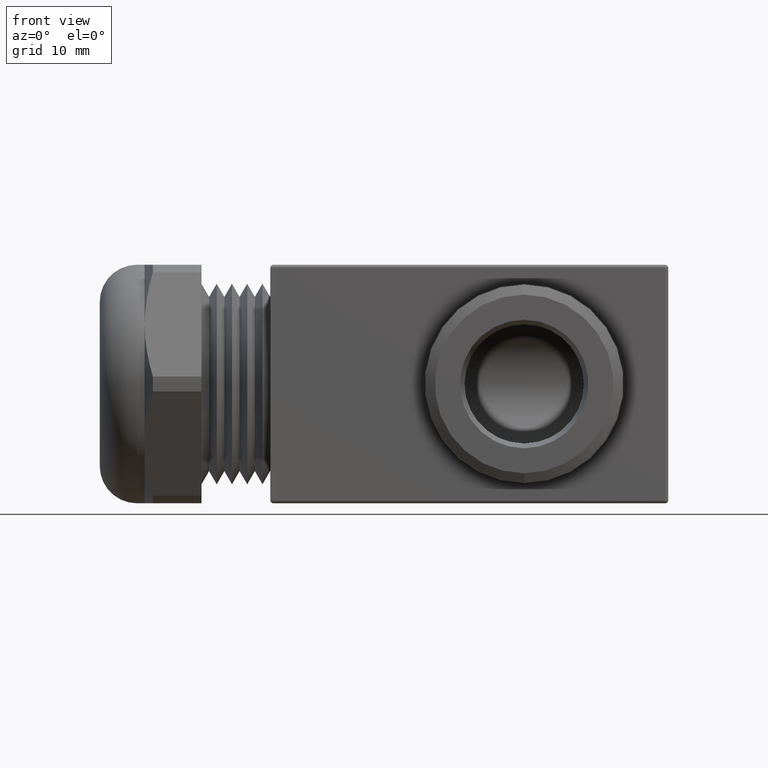
[diagram: clean part render]
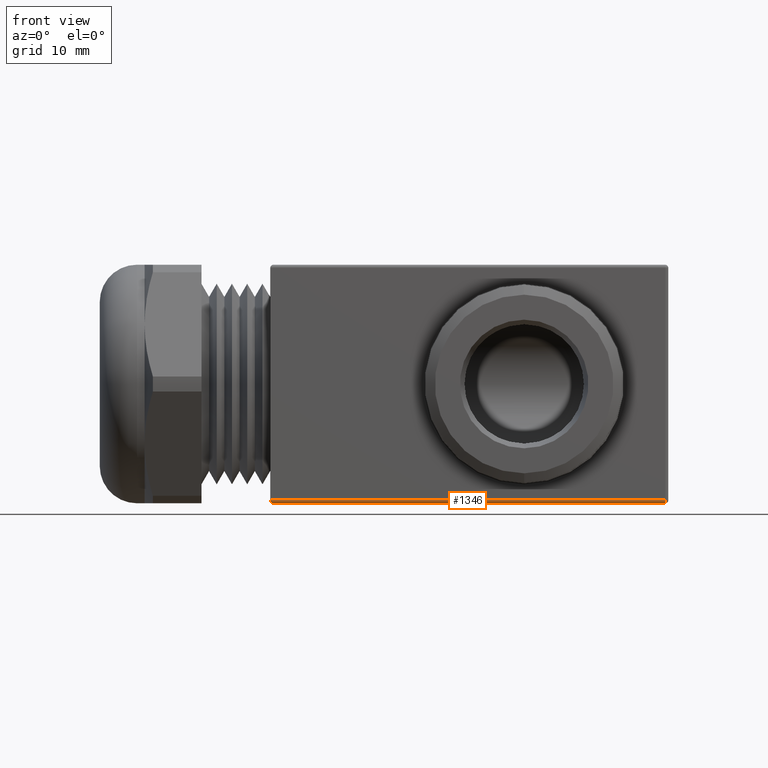
[diagram: same view with one face highlighted and labeled with its STEP entity id]
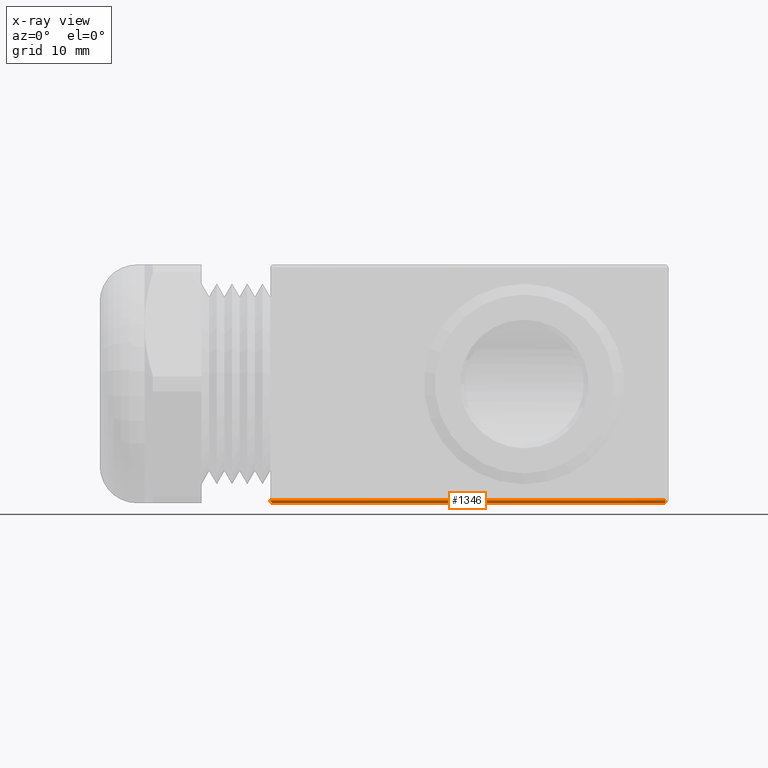
[diagram: x-ray of the same camera — body ghosted, the highlighted face saturated]
A machine part, front view. The second image highlights one B-rep face of the part: STEP entity #1346.
The next image is the same camera in x-ray: the body ghosted, the highlighted face saturated — about 0% of this face is hidden behind the body in this view.
In plain terms, the highlighted cylindrical surface (edge-blend (fillet) strip) has radius 0.3214 mm, axis along (1, 0, 0).
Its self-contained STEP definition (entity closure, byte-faithful):
#1266 = EDGE_CURVE ( 'NONE', #1367, #1267, #3890, .T. ) ;
#1267 = VERTEX_POINT ( 'NONE', #3885 ) ;
#1346 = ADVANCED_FACE ( 'NONE', ( #4129 ), #4128, .T. ) ;
#1347 = EDGE_LOOP ( 'NONE', ( #1348, #1351, #1353, #1354 ) ) ;
#1348 = ORIENTED_EDGE ( 'NONE', *, *, #1349, .T. ) ;
#1349 = EDGE_CURVE ( 'NONE', #1383, #1350, #4123, .T. ) ;
#1350 = VERTEX_POINT ( 'NONE', #4122 ) ;
#1351 = ORIENTED_EDGE ( 'NONE', *, *, #1352, .F. ) ;
#1352 = EDGE_CURVE ( 'NONE', #1267, #1350, #4121, .T. ) ;
#1353 = ORIENTED_EDGE ( 'NONE', *, *, #1266, .F. ) ;
#1354 = ORIENTED_EDGE ( 'NONE', *, *, #1386, .F. ) ;
#1367 = VERTEX_POINT ( 'NONE', #4111 ) ;
#1383 = VERTEX_POINT ( 'NONE', #4084 ) ;
#1386 = EDGE_CURVE ( 'NONE', #1383, #1367, #4082, .T. ) ;
#3885 = CARTESIAN_POINT ( 'NONE',  ( 1.555344632768362700, -0.5873446327683616900, -0.4700000000000000300 ) ) ;
#3886 = DIRECTION ( 'NONE',  ( 0.0000000000000000000, 0.0000000000000000000, -1.000000000000000000 ) ) ;
#3887 = DIRECTION ( 'NONE',  ( 1.000000000000000000, 0.0000000000000000000, 0.0000000000000000000 ) ) ;
#3888 = CARTESIAN_POINT ( 'NONE',  ( 1.555344632768362700, -0.5873446327683616900, -0.4573446327683616300 ) ) ;
#3889 = AXIS2_PLACEMENT_3D ( 'NONE', #3888, #3887, #3886 ) ;
#3890 = CIRCLE ( 'NONE', #3889, 0.01265536723163842100 ) ;
#3999 = DIRECTION ( 'NONE',  ( -1.000000000000000000, -1.306687496969512800E-016, 0.0000000000000000000 ) ) ;
#4000 = VECTOR ( 'NONE', #3999, 39.37007874015748100 ) ;
#4001 = CARTESIAN_POINT ( 'NONE',  ( 0.0000000000000000000, -0.5873446327683619100, -0.4700000000000000300 ) ) ;
#4002 = CARTESIAN_POINT ( 'NONE',  ( 0.01265536723163842100, -0.5873446327683619100, -0.4700000000000000300 ) ) ;
#4003 = CARTESIAN_POINT ( 'NONE',  ( 0.005242024744157065500, -0.5947579752558431700, -0.4700000000000000300 ) ) ;
#4004 = CARTESIAN_POINT ( 'NONE',  ( 4.818854531417923400E-016, -0.5999999999999998700, -0.4647579752558437800 ) ) ;
#4005 = CARTESIAN_POINT ( 'NONE',  ( 1.665464641198552300E-017, -0.6000000000000003100, -0.4573446327683624600 ) ) ;
#4079 = DIRECTION ( 'NONE',  ( 1.000000000000000000, 1.306687496969512800E-016, 0.0000000000000000000 ) ) ;
#4080 = VECTOR ( 'NONE', #4079, 39.37007874015748100 ) ;
#4081 = CARTESIAN_POINT ( 'NONE',  ( 1.568000000000000900, -0.6000000000000000900, -0.4573446327683616300 ) ) ;
#4082 = LINE ( 'NONE', #4081, #4080 ) ;
#4084 = CARTESIAN_POINT ( 'NONE',  ( 1.665464641198552300E-017, -0.6000000000000003100, -0.4573446327683624600 ) ) ;
#4111 = CARTESIAN_POINT ( 'NONE',  ( 1.555344632768362700, -0.6000000000000000900, -0.4573446327683616300 ) ) ;
#4121 = LINE ( 'NONE', #4001, #4000 ) ;
#4122 = CARTESIAN_POINT ( 'NONE',  ( 0.01265536723163842100, -0.5873446327683619100, -0.4700000000000000300 ) ) ;
#4123 =( BOUNDED_CURVE ( )  B_SPLINE_CURVE ( 3, ( #4005, #4004, #4003, #4002 ),
 .UNSPECIFIED., .F., .F. ) 
 B_SPLINE_CURVE_WITH_KNOTS ( ( 4, 4 ),
 ( 3.141592653589858000, 4.712388980384689700 ),
 .UNSPECIFIED. ) 
 CURVE ( )  GEOMETRIC_REPRESENTATION_ITEM ( )  RATIONAL_B_SPLINE_CURVE ( ( 1.000000000000000000, 0.8047378541243803700, 0.8047378541243803700, 1.000000000000000000 ) ) 
 REPRESENTATION_ITEM ( '' )  );
#4124 = DIRECTION ( 'NONE',  ( 0.0000000000000000000, 1.000000000000000000, 0.0000000000000000000 ) ) ;
#4125 = DIRECTION ( 'NONE',  ( 1.000000000000000000, 1.306687496969512800E-016, 0.0000000000000000000 ) ) ;
#4126 = CARTESIAN_POINT ( 'NONE',  ( 1.232614984114216700, -0.5873446327683616900, -0.4573446327683616300 ) ) ;
#4127 = AXIS2_PLACEMENT_3D ( 'NONE', #4126, #4125, #4124 ) ;
#4128 = CYLINDRICAL_SURFACE ( 'NONE', #4127, 0.01265536723163842100 ) ;
#4129 = FACE_OUTER_BOUND ( 'NONE', #1347, .T. ) ;